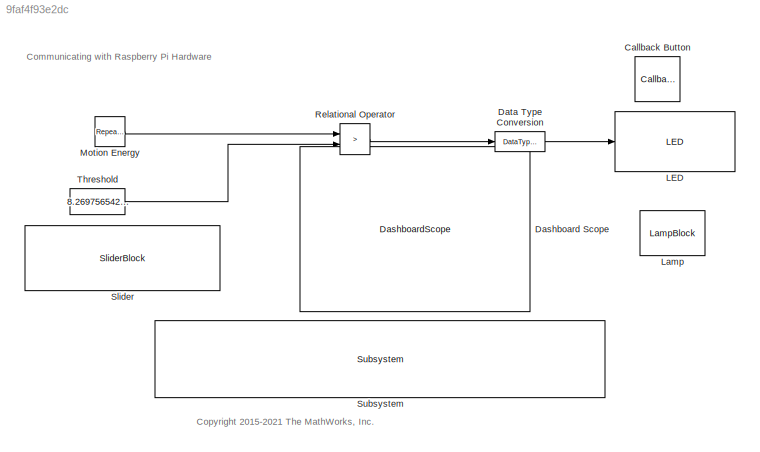
MODEL slx_9faf4f93e2dc
KIND model
CONFIG AbsTol = auto
CONFIG EnableMultiTasking = on
CONFIG FixedStep = auto
CONFIG MaxStep = auto
CONFIG MinStep = auto
CONFIG RelTol = 1e-3
CONFIG SampleTimeConstraint = Unconstrained
CONFIG SolverName = ode45
CONFIG StartTime = 0.0
CONFIG StopTime = 10.0
BLOCK [CallbackButton] Callback Button
  ButtonText = ?
  ClickFcn = showExample('raspberrypi/ExternalModeWithRaspberryPiRHardwareExample')
BLOCK [DashboardScope] Dashboard Scope
  Ymax = 2
  Ymin = 0
BLOCK [DataTypeConversion] Data Type Conversion
  RndMeth = Floor
  SaturateOnIntegerOverflow = off
BLOCK [Reference] LED  REF=raspberrypiBasiclib/LED
  SourceBlock = raspberrypiBasiclib/LED
  SourceType = codertarget.raspi.internal.LEDBlock
BLOCK [LampBlock] Lamp
  LabelPosition = Hide
BLOCK [Reference] Motion Energy  REF=simulink/Sources/Repeating
Sequence
Stair
  SourceBlock = simulink/Sources/Repeating\nSequence\nStair
  SourceType = Repeating Sequence Stair
BLOCK [RelationalOperator] Relational Operator
  InputSameDT = off
  Operator = >
  OutDataTypeStr = fixdt(1,16)
BLOCK [SliderBlock] Slider
  LabelPosition = Bottom
  ScaleMax = 20
BLOCK [Reference] Subsystem  REF=realtime_examples_misc/Subsystem
  SourceBlock = realtime_examples_misc/Subsystem
BLOCK [Constant] Threshold 
  OutDataTypeStr = uint8
  SampleTime = 0.1
  Value = 8.269756542116912
ANNOTATION (root): Communicating with Raspberry Pi Hardware
ANNOTATION (root): <copyright redacted>
LINE Data Type Conversion:1 -> LED:1
LINE Motion Energy:1 -> Relational Operator:1
LINE Relational Operator:1 -> Data Type Conversion:1
LINE Threshold :1 -> Relational Operator:2
